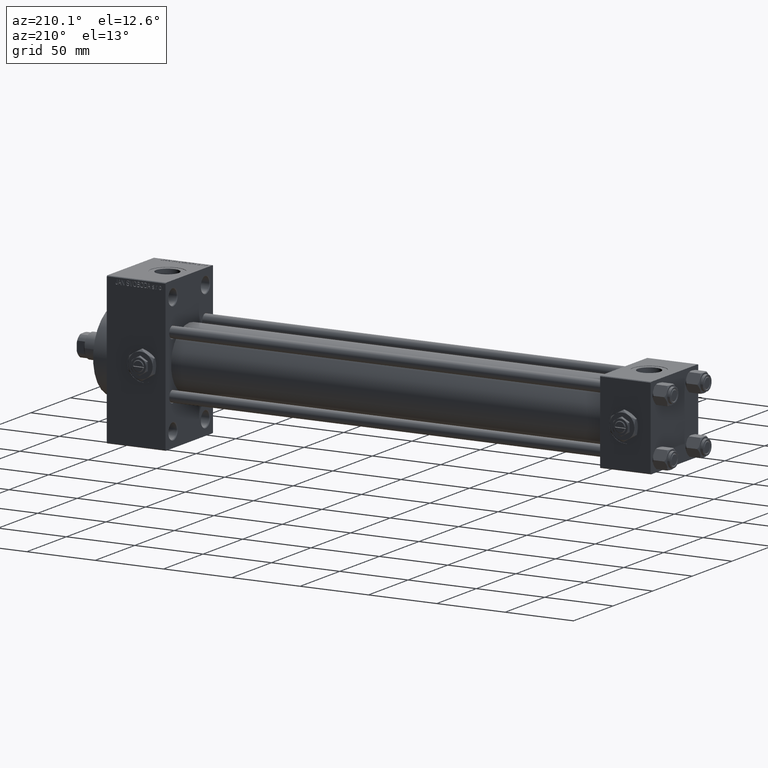
[diagram: clean part render]
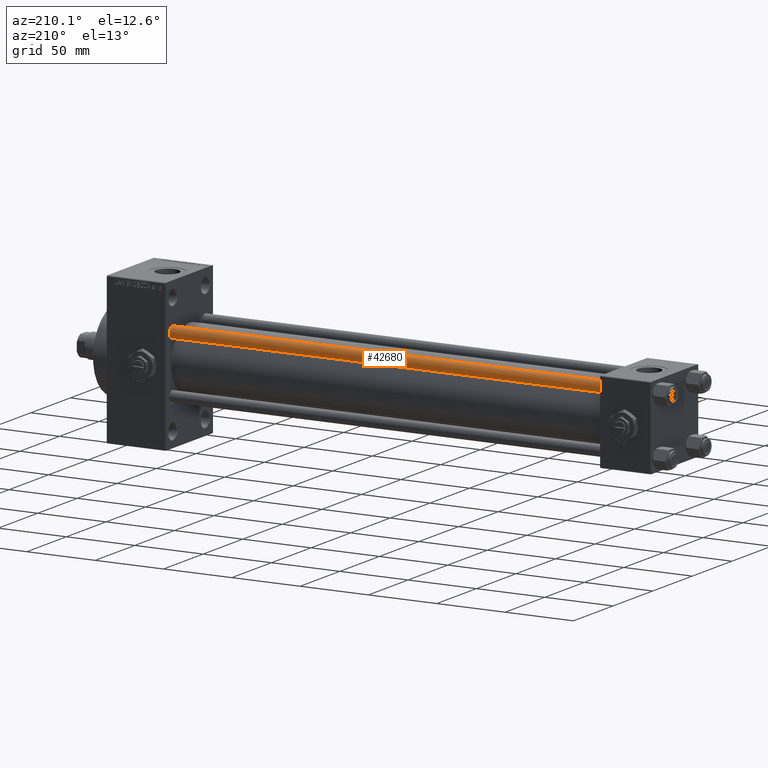
[diagram: same view with one face highlighted and labeled with its STEP entity id]
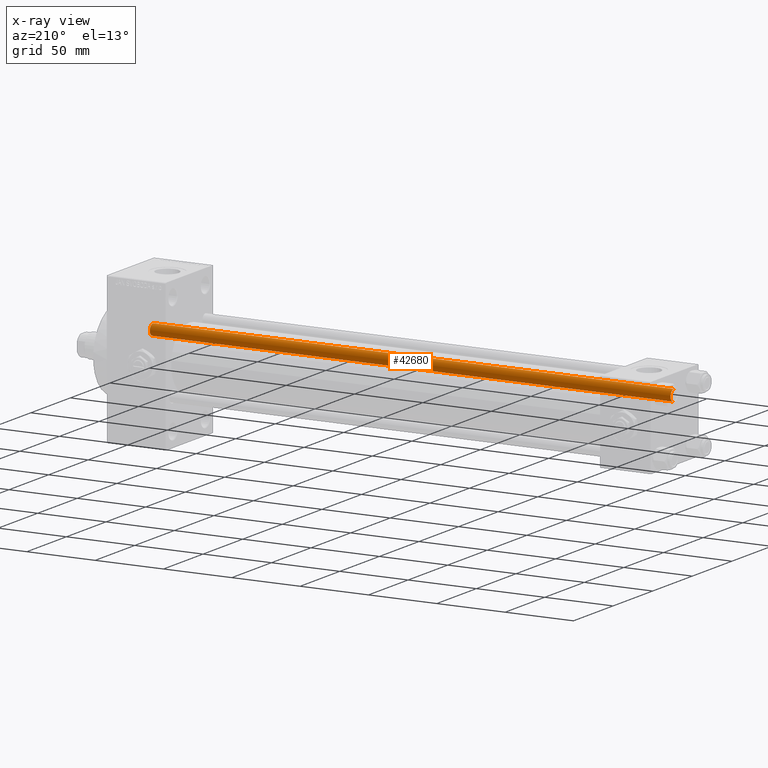
[diagram: x-ray of the same camera — body ghosted, the highlighted face saturated]
A machine part, auxiliary view. The second image highlights one B-rep face of the part: STEP entity #42680.
The next image is the same camera in x-ray: the body ghosted, the highlighted face saturated — about 0% of this face is hidden behind the body in this view.
In plain terms, the highlighted cylindrical surface (edge-blend (fillet) strip) has radius 4 mm, axis along (-1, -0, 0).
Its self-contained STEP definition (entity closure, byte-faithful):
#938 = CARTESIAN_POINT ( 'NONE',  ( 4.000000000000000000, 4.898587196589412829E-16, 0.5000000000000559552 ) ) ;
#2092 = VECTOR ( 'NONE', #34353, 1000.000000000000000 ) ;
#2183 = EDGE_CURVE ( 'NONE', #14228, #19677, #16218, .T. ) ;
#2197 = CARTESIAN_POINT ( 'NONE',  ( 4.000000000000000000, 4.898587196589412829E-16, 381.5000000000000568 ) ) ;
#2281 = CARTESIAN_POINT ( 'NONE',  ( -4.000000000000000000, 0.000000000000000000, 381.5000000000000568 ) ) ;
#3901 = EDGE_CURVE ( 'NONE', #14228, #25500, #39005, .T. ) ;
#7738 = CARTESIAN_POINT ( 'NONE',  ( -4.000000000000000000, 0.000000000000000000, 382.0000000000000000 ) ) ;
#10267 = CARTESIAN_POINT ( 'NONE',  ( 0.000000000000000000, 0.000000000000000000, 0.5000000000000559552 ) ) ;
#10890 = CARTESIAN_POINT ( 'NONE',  ( 0.000000000000000000, 0.000000000000000000, 382.0000000000000000 ) ) ;
#11382 = DIRECTION ( 'NONE',  ( -1.000000000000000000, 0.000000000000000000, 0.000000000000000000 ) ) ;
#11448 = EDGE_CURVE ( 'NONE', #36422, #19677, #42162, .T. ) ;
#14228 = VERTEX_POINT ( 'NONE', #2281 ) ;
#14405 = CYLINDRICAL_SURFACE ( 'NONE', #48240, 4.000000000000000000 ) ;
#15148 = AXIS2_PLACEMENT_3D ( 'NONE', #10267, #17517, #43660 ) ;
#15193 = CARTESIAN_POINT ( 'NONE',  ( 4.000000000000000000, 4.898587196589412829E-16, 382.0000000000000000 ) ) ;
#15336 = EDGE_LOOP ( 'NONE', ( #48611, #35193, #19195, #34633 ) ) ;
#15973 = AXIS2_PLACEMENT_3D ( 'NONE', #27841, #34814, #35296 ) ;
#16218 = LINE ( 'NONE', #7738, #18285 ) ;
#17517 = DIRECTION ( 'NONE',  ( -0.000000000000000000, -0.000000000000000000, 1.000000000000000000 ) ) ;
#17895 = FACE_OUTER_BOUND ( 'NONE', #15336, .T. ) ;
#18285 = VECTOR ( 'NONE', #22965, 1000.000000000000000 ) ;
#19195 = ORIENTED_EDGE ( 'NONE', *, *, #11448, .T. ) ;
#19677 = VERTEX_POINT ( 'NONE', #33203 ) ;
#22965 = DIRECTION ( 'NONE',  ( -0.000000000000000000, -0.000000000000000000, -1.000000000000000000 ) ) ;
#25500 = VERTEX_POINT ( 'NONE', #2197 ) ;
#26097 = DIRECTION ( 'NONE',  ( -0.000000000000000000, -0.000000000000000000, -1.000000000000000000 ) ) ;
#27841 = CARTESIAN_POINT ( 'NONE',  ( 0.000000000000000000, 0.000000000000000000, 381.5000000000000568 ) ) ;
#30385 = LINE ( 'NONE', #15193, #2092 ) ;
#33203 = CARTESIAN_POINT ( 'NONE',  ( -4.000000000000000000, 0.000000000000000000, 0.5000000000000559552 ) ) ;
#34353 = DIRECTION ( 'NONE',  ( -0.000000000000000000, -0.000000000000000000, -1.000000000000000000 ) ) ;
#34633 = ORIENTED_EDGE ( 'NONE', *, *, #2183, .F. ) ;
#34814 = DIRECTION ( 'NONE',  ( 0.000000000000000000, 0.000000000000000000, -1.000000000000000000 ) ) ;
#35193 = ORIENTED_EDGE ( 'NONE', *, *, #42429, .T. ) ;
#35296 = DIRECTION ( 'NONE',  ( 1.000000000000000000, 0.000000000000000000, 0.000000000000000000 ) ) ;
#36422 = VERTEX_POINT ( 'NONE', #938 ) ;
#39005 = CIRCLE ( 'NONE', #15973, 4.000000000000000000 ) ;
#42162 = CIRCLE ( 'NONE', #15148, 4.000000000000000000 ) ;
#42429 = EDGE_CURVE ( 'NONE', #25500, #36422, #30385, .T. ) ;
#42680 = ADVANCED_FACE ( 'NONE', ( #17895 ), #14405, .T. ) ;
#43660 = DIRECTION ( 'NONE',  ( 1.000000000000000000, 0.000000000000000000, 0.000000000000000000 ) ) ;
#48240 = AXIS2_PLACEMENT_3D ( 'NONE', #10890, #26097, #11382 ) ;
#48611 = ORIENTED_EDGE ( 'NONE', *, *, #3901, .T. ) ;